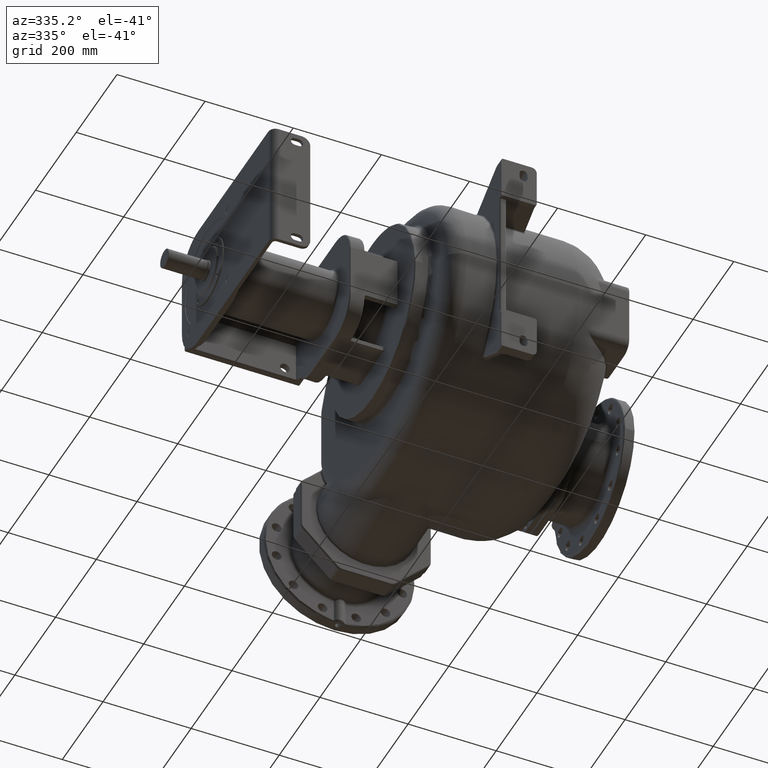
[diagram: clean part render]
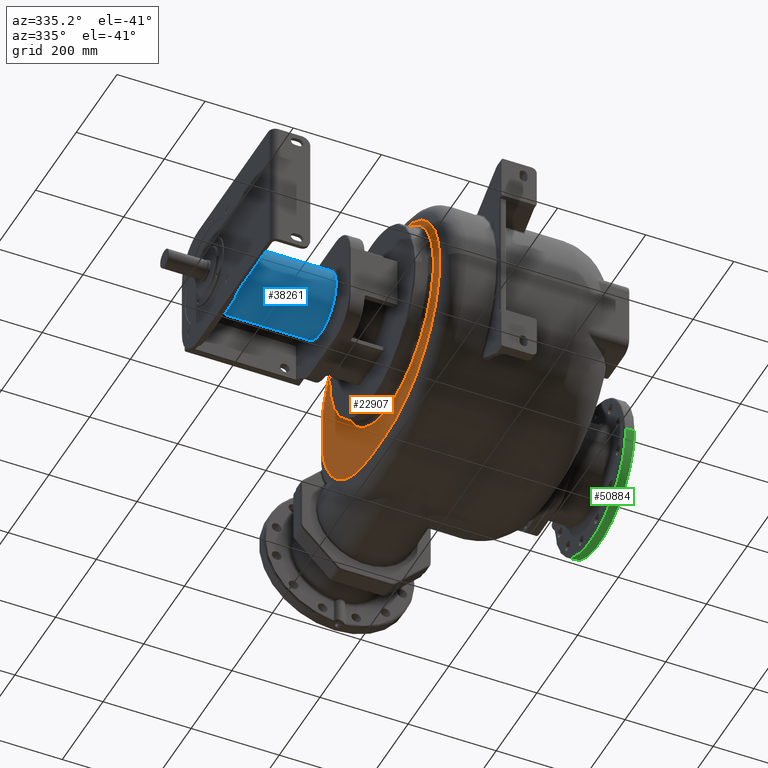
[diagram: same view with three faces highlighted in distinct colors, each labeled with its STEP entity id]
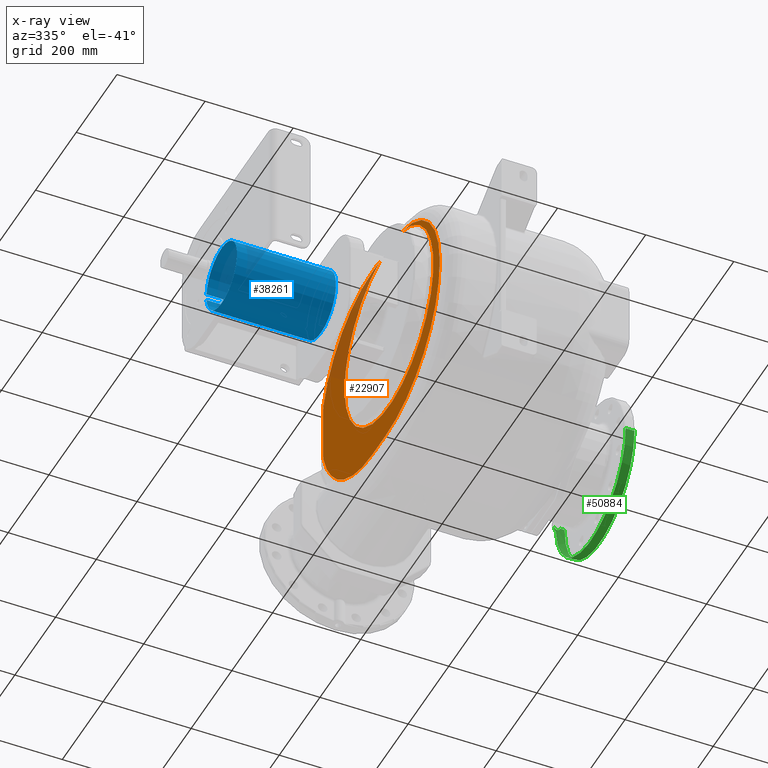
[diagram: x-ray of the same camera — body ghosted, the three highlighted faces saturated]
A machine part, auxiliary view with three faces highlighted in distinct colors.
The next image is the same camera in x-ray (body ghosted, the three faces saturated) — at least one of them is partly hidden behind the body in this view.
Their STEP definitions:

[orange] entity #22907 — the highlighted planar face has unit normal (-1, 0, 0).
#1528=CARTESIAN_POINT('',(-1.62E2,3.94E2,-3.6E1));
#1529=DIRECTION('',(-1.E0,0.E0,0.E0));
#1530=DIRECTION('',(0.E0,9.547738693467E-1,-2.973329083917E-1));
#1531=AXIS2_PLACEMENT_3D('',#1528,#1529,#1530);
#1533=CARTESIAN_POINT('',(-1.62E2,5.84E2,-9.516924876995E1));
#1534=DIRECTION('',(-1.E0,0.E0,0.E0));
#1535=DIRECTION('',(0.E0,1.E0,0.E0));
#1536=AXIS2_PLACEMENT_3D('',#1533,#1534,#1535);
#1538=DIRECTION('',(0.E0,0.E0,-1.E0));
#1539=VECTOR('',#1538,1.183384975399E2);
#1540=CARTESIAN_POINT('',(-1.62E2,6.34E2,2.316924876995E1));
#1541=LINE('',#1540,#1539);
#1542=CARTESIAN_POINT('',(-1.62E2,5.84E2,2.316924876995E1));
#1543=DIRECTION('',(-1.E0,0.E0,0.E0));
#1544=DIRECTION('',(0.E0,9.547738693467E-1,2.973329083917E-1));
#1545=AXIS2_PLACEMENT_3D('',#1542,#1543,#1544);
#1547=CARTESIAN_POINT('',(-1.62E2,3.94E2,-3.6E1));
#1548=DIRECTION('',(-1.E0,0.E0,0.E0));
#1549=DIRECTION('',(0.E0,0.E0,1.E0));
#1550=AXIS2_PLACEMENT_3D('',#1547,#1548,#1549);
#1552=DIRECTION('',(1.790136419162E-8,1.E0,2.011860714411E-13));
#1553=VECTOR('',#1552,3.757802244626E1);
#1554=CARTESIAN_POINT('',(-1.620000006727E2,3.564219775537E2,2.13E2));
#1555=LINE('',#1554,#1553);
#1556=CARTESIAN_POINT('',(-1.62E2,2.92E2,-1.8E1));
#1557=DIRECTION('',(-1.E0,0.E0,0.E0));
#1558=DIRECTION('',(0.E0,-1.E0,0.E0));
#1559=AXIS2_PLACEMENT_3D('',#1556,#1557,#1558);
#1561=CARTESIAN_POINT('',(-1.62E2,3.28E2,-1.8E1));
#1562=DIRECTION('',(-1.E0,0.E0,0.E0));
#1563=DIRECTION('',(0.E0,0.E0,-1.E0));
#1564=AXIS2_PLACEMENT_3D('',#1561,#1562,#1563);
#1566=DIRECTION('',(0.E0,-1.E0,0.E0));
#1567=VECTOR('',#1566,6.6E1);
#1568=CARTESIAN_POINT('',(-1.62E2,3.94E2,-2.85E2));
#1569=LINE('',#1568,#1567);
#1570=CARTESIAN_POINT('',(-1.62E2,3.94E2,-3.6E1));
#1571=DIRECTION('',(-1.E0,0.E0,0.E0));
#1572=DIRECTION('',(0.E0,6.951388519948E-1,-7.188754943990E-1));
#1573=AXIS2_PLACEMENT_3D('',#1570,#1571,#1572);
#2168=CARTESIAN_POINT('',(-1.62E2,5.670895725054E2,-2.149999996754E2));
#2180=CARTESIAN_POINT('',(-1.620000002137E2,2.458049913749E2,2.083338668808E2));
#2208=CARTESIAN_POINT('',(-1.62E2,3.1E2,0.E0));
#2209=DIRECTION('',(1.E0,0.E0,0.E0));
#2210=DIRECTION('',(0.E0,-2.944728288848E-1,9.556598521695E-1));
#2211=AXIS2_PLACEMENT_3D('',#2208,#2209,#2210);
#20302=CARTESIAN_POINT('',(-1.62E2,6.317386934673E2,3.803589418953E1));
#20303=CARTESIAN_POINT('',(-1.62E2,6.34E2,2.316924876995E1));
#20304=VERTEX_POINT('',#20302);
#20305=VERTEX_POINT('',#20303);
#20308=CARTESIAN_POINT('',(-1.62E2,6.34E2,-9.516924876995E1));
#20309=VERTEX_POINT('',#20308);
#20310=CARTESIAN_POINT('',(-1.62E2,6.317386934673E2,-1.100358941895E2));
#20311=VERTEX_POINT('',#20310);
#20312=CARTESIAN_POINT('',(-1.62E2,3.94E2,-2.85E2));
#20313=CARTESIAN_POINT('',(-1.62E2,3.28E2,-2.85E2));
#20314=VERTEX_POINT('',#20312);
#20315=VERTEX_POINT('',#20313);
#20318=CARTESIAN_POINT('',(-1.62E2,6.1E1,-1.8E1));
#20319=VERTEX_POINT('',#20318);
#20322=CARTESIAN_POINT('',(-1.62E2,3.94E2,2.13E2));
#20323=VERTEX_POINT('',#20322);
#20518=CARTESIAN_POINT('',(-1.620000006727E2,3.564219775537E2,2.13E2));
#20519=VERTEX_POINT('',#20518);
#20524=VERTEX_POINT('',#2168);
#20582=VERTEX_POINT('',#2180);
#22879=CARTESIAN_POINT('',(-1.62E2,3.1E2,0.E0));
#22880=DIRECTION('',(-1.E0,0.E0,0.E0));
#22881=DIRECTION('',(0.E0,0.E0,1.E0));
#22882=AXIS2_PLACEMENT_3D('',#22879,#22880,#22881);
#22883=PLANE('',#22882);
#22885=ORIENTED_EDGE('',*,*,#22884,.F.);
#22887=ORIENTED_EDGE('',*,*,#22886,.F.);
#22889=ORIENTED_EDGE('',*,*,#22888,.F.);
#22891=ORIENTED_EDGE('',*,*,#22890,.F.);
#22893=ORIENTED_EDGE('',*,*,#22892,.F.);
#22894=ORIENTED_EDGE('',*,*,#22865,.F.);
#22896=ORIENTED_EDGE('',*,*,#22895,.F.);
#22898=ORIENTED_EDGE('',*,*,#22897,.F.);
#22900=ORIENTED_EDGE('',*,*,#22899,.F.);
#22902=ORIENTED_EDGE('',*,*,#22901,.F.);
#22904=ORIENTED_EDGE('',*,*,#22903,.F.);
#22905=EDGE_LOOP('',(#22885,#22887,#22889,#22891,#22893,#22894,#22896,#22898,
#22900,#22902,#22904));
#22906=FACE_OUTER_BOUND('',#22905,.F.);
#22907=ADVANCED_FACE('',(#22906),#22883,.T.);
#1532=CIRCLE('',#1531,2.49E2);
#1537=CIRCLE('',#1536,5.E1);
#1546=CIRCLE('',#1545,5.E1);
#1551=CIRCLE('',#1550,2.49E2);
#1560=CIRCLE('',#1559,2.31E2);
#1565=CIRCLE('',#1564,2.67E2);
#1574=CIRCLE('',#1573,2.49E2);
#2212=CIRCLE('',#2211,2.18E2);
#22865=EDGE_CURVE('',#20519,#20323,#1555,.T.);
#22884=EDGE_CURVE('',#20311,#20524,#1532,.T.);
#22886=EDGE_CURVE('',#20309,#20311,#1537,.T.);
#22888=EDGE_CURVE('',#20305,#20309,#1541,.T.);
#22890=EDGE_CURVE('',#20304,#20305,#1546,.T.);
#22892=EDGE_CURVE('',#20323,#20304,#1551,.T.);
#22895=EDGE_CURVE('',#20582,#20519,#2212,.T.);
#22897=EDGE_CURVE('',#20319,#20582,#1560,.T.);
#22899=EDGE_CURVE('',#20315,#20319,#1565,.T.);
#22901=EDGE_CURVE('',#20314,#20315,#1569,.T.);
#22903=EDGE_CURVE('',#20524,#20314,#1574,.T.);

[blue] entity #38261 — the highlighted cylindrical surface (edge-blend (fillet) strip) has radius 75 mm, axis along (-1, 0, 0).
#15831=CARTESIAN_POINT('',(-3.17E2,3.846044797760E2,-7.692307692506E0));
#15833=CARTESIAN_POINT('',(-3.17E2,3.1E2,0.E0));
#15834=DIRECTION('',(-1.E0,0.E0,0.E0));
#15835=DIRECTION('',(0.E0,9.947263969882E-1,-1.025641025641E-1));
#15836=AXIS2_PLACEMENT_3D('',#15833,#15834,#15835);
#16549=CARTESIAN_POINT('',(-5.42E2,3.846044797762E2,7.692307692518E0));
#16551=CARTESIAN_POINT('',(-5.42E2,3.1E2,0.E0));
#16552=DIRECTION('',(1.E0,0.E0,0.E0));
#16553=DIRECTION('',(0.E0,9.947263969882E-1,1.025641025641E-1));
#16554=AXIS2_PLACEMENT_3D('',#16551,#16552,#16553);
#16706=DIRECTION('',(-1.E0,5.088117581585E-13,-5.243410643945E-14));
#16707=VECTOR('',#16706,2.25E2);
#16708=CARTESIAN_POINT('',(-3.17E2,3.846044797760E2,-7.692307692506E0));
#16709=LINE('',#16708,#16707);
#16710=DIRECTION('',(1.E0,-5.088117581585E-13,-5.246963357624E-14));
#16711=VECTOR('',#16710,2.25E2);
#16712=CARTESIAN_POINT('',(-5.42E2,3.846044797762E2,7.692307692518E0));
#16713=LINE('',#16712,#16711);
#21712=VERTEX_POINT('',#15831);
#21713=CARTESIAN_POINT('',(-5.42E2,3.846044797762E2,-7.692307692518E0));
#21714=VERTEX_POINT('',#21713);
#21727=VERTEX_POINT('',#16549);
#21728=CARTESIAN_POINT('',(-3.17E2,3.846044797760E2,7.692307692506E0));
#21729=VERTEX_POINT('',#21728);
#38249=CARTESIAN_POINT('',(-2.7175E2,3.1E2,0.E0));
#38250=DIRECTION('',(-1.E0,0.E0,0.E0));
#38251=DIRECTION('',(0.E0,-1.E0,0.E0));
#38252=AXIS2_PLACEMENT_3D('',#38249,#38250,#38251);
#38253=CYLINDRICAL_SURFACE('',#38252,7.5E1);
#38255=ORIENTED_EDGE('',*,*,#38254,.T.);
#38256=ORIENTED_EDGE('',*,*,#37955,.F.);
#38257=ORIENTED_EDGE('',*,*,#38241,.T.);
#38258=ORIENTED_EDGE('',*,*,#36955,.F.);
#38259=EDGE_LOOP('',(#38255,#38256,#38257,#38258));
#38260=FACE_OUTER_BOUND('',#38259,.F.);
#38261=ADVANCED_FACE('',(#38260),#38253,.T.);
#15837=CIRCLE('',#15836,7.5E1);
#16555=CIRCLE('',#16554,7.5E1);
#36955=EDGE_CURVE('',#21712,#21729,#15837,.T.);
#37955=EDGE_CURVE('',#21727,#21714,#16555,.T.);
#38241=EDGE_CURVE('',#21727,#21729,#16713,.T.);
#38254=EDGE_CURVE('',#21712,#21714,#16709,.T.);

[green] entity #50884 — the highlighted cylindrical surface (partial cylindrical patch) has radius 171.5 mm, axis along (1, 0, 0).
#48481=CARTESIAN_POINT('',(3.946E2,7.015E2,-3.600000000002E1));
#48529=CARTESIAN_POINT('',(4.064E2,7.015E2,-3.6E1));
#48577=DIRECTION('',(-1.E0,0.E0,0.E0));
#48578=VECTOR('',#48577,1.11E1);
#48579=CARTESIAN_POINT('',(4.175E2,7.015E2,-3.6E1));
#48580=LINE('',#48579,#48578);
#48679=CARTESIAN_POINT('',(3.935E2,7.013440547398E2,-4.331197000296E1));
#48681=DIRECTION('',(-1.E0,0.E0,2.230458242345E-11));
#48682=VECTOR('',#48681,1.1E0);
#48683=CARTESIAN_POINT('',(3.946E2,7.015E2,-3.600000000002E1));
#48684=LINE('',#48683,#48682);
#48685=CARTESIAN_POINT('',(4.005E2,7.013984830738E2,-4.19E1));
#48686=CARTESIAN_POINT('',(4.005702226354E2,7.013984830738E2,-4.19E1));
#48687=CARTESIAN_POINT('',(4.007105641558E2,7.013985693492E2,
-4.189749444728E1));
#48688=CARTESIAN_POINT('',(4.009208879221E2,7.013989569163E2,
-4.188622461156E1));
#48689=CARTESIAN_POINT('',(4.011306549644E2,7.013996006672E2,
-4.186745746535E1));
#48690=CARTESIAN_POINT('',(4.013396285659E2,7.014004973365E2,
-4.184121643532E1));
#48691=CARTESIAN_POINT('',(4.015475406779E2,7.014016424044E2,
-4.180753343295E1));
#48692=CARTESIAN_POINT('',(4.017541220177E2,7.014030300239E2,
-4.176645162485E1));
#48693=CARTESIAN_POINT('',(4.019591074273E2,7.014046531160E2,
-4.171802347068E1));
#48694=CARTESIAN_POINT('',(4.021622400034E2,7.014065034528E2,
-4.166230924751E1));
#48695=CARTESIAN_POINT('',(4.023632624720E2,7.014085716380E2,
-4.159937875729E1));
#48696=CARTESIAN_POINT('',(4.025619234444E2,7.014108472140E2,
-4.152930941331E1));
#48697=CARTESIAN_POINT('',(4.027579611567E2,7.014133185104E2,
-4.145219246462E1));
#48698=CARTESIAN_POINT('',(4.029511255603E2,7.014159729336E2,
-4.136812589647E1));
#48699=CARTESIAN_POINT('',(4.031411730083E2,7.014187970026E2,
-4.127721501744E1));
#48700=CARTESIAN_POINT('',(4.033278620818E2,7.014217763523E2,
-4.117957440190E1));
#48701=CARTESIAN_POINT('',(4.035109579924E2,7.014248958747E2,
-4.107532541289E1));
#48702=CARTESIAN_POINT('',(4.036902176361E2,7.014281395187E2,
-4.096460548630E1));
#48703=CARTESIAN_POINT('',(4.038654131687E2,7.014314907595E2,
-4.084755516393E1));
#48704=CARTESIAN_POINT('',(4.040363225011E2,7.014349325436E2,
-4.072432224619E1));
#48705=CARTESIAN_POINT('',(4.042027281494E2,7.014384473408E2,
-4.059506289987E1));
#48706=CARTESIAN_POINT('',(4.043644198342E2,7.014420172873E2,
-4.045993930319E1));
#48707=CARTESIAN_POINT('',(4.045211820289E2,7.014456239795E2,
-4.031913113848E1));
#48708=CARTESIAN_POINT('',(4.046728165656E2,7.014492490596E2,
-4.017281687220E1));
#48709=CARTESIAN_POINT('',(4.048191308401E2,7.014528740629E2,
-4.002118234925E1));
#48710=CARTESIAN_POINT('',(4.049599390048E2,7.014564805261E2,
-3.986442017827E1));
#48711=CARTESIAN_POINT('',(4.050950626028E2,7.014600500963E2,
-3.970272851769E1));
#48712=CARTESIAN_POINT('',(4.052243219442E2,7.014635643773E2,
-3.953632290385E1));
#48713=CARTESIAN_POINT('',(4.053475548585E2,7.014670055162E2,
-3.936541360802E1));
#48714=CARTESIAN_POINT('',(4.054646051779E2,7.014703559958E2,
-3.919021811507E1));
#48715=CARTESIAN_POINT('',(4.055753251009E2,7.014735987782E2,
-3.901095851754E1));
#48716=CARTESIAN_POINT('',(4.056795740942E2,7.014767173562E2,
-3.882786264475E1));
#48717=CARTESIAN_POINT('',(4.057772147174E2,7.014796956979E2,
-3.864117360714E1));
#48718=CARTESIAN_POINT('',(4.058681256092E2,7.014825187159E2,
-3.845112618903E1));
#48719=CARTESIAN_POINT('',(4.059521921948E2,7.014851720665E2,
-3.825796180798E1));
#48720=CARTESIAN_POINT('',(4.060293091672E2,7.014876422906E2,
-3.806192410448E1));
#48721=CARTESIAN_POINT('',(4.060993785380E2,7.014899168164E2,
-3.786326313186E1));
#48722=CARTESIAN_POINT('',(4.061623090611E2,7.014919839950E2,
-3.766224064010E1));
#48723=CARTESIAN_POINT('',(4.062180233173E2,7.014938333889E2,
-3.745910803051E1));
#48724=CARTESIAN_POINT('',(4.062664515049E2,7.014954556213E2,
-3.725412257265E1));
#48725=CARTESIAN_POINT('',(4.063075333451E2,7.014968424815E2,-3.704754117E1));
#48726=CARTESIAN_POINT('',(4.063412163773E2,7.014979869060E2,
-3.683962897645E1));
#48727=CARTESIAN_POINT('',(4.063674574321E2,7.014988830609E2,
-3.663065528583E1));
#48728=CARTESIAN_POINT('',(4.063862245971E2,7.014995264367E2,
-3.642088813731E1));
#48729=CARTESIAN_POINT('',(4.063974944446E2,7.014999137756E2,
-3.621056428363E1));
#48730=CARTESIAN_POINT('',(4.064E2,7.015E2,-3.607022263791E1));
#48731=CARTESIAN_POINT('',(4.064E2,7.015E2,-3.6E1));
#48733=CARTESIAN_POINT('',(3.946E2,7.015E2,-3.600000000002E1));
#48734=CARTESIAN_POINT('',(3.946E2,7.015E2,-3.607022263785E1));
#48735=CARTESIAN_POINT('',(3.946025055554E2,7.014999137756E2,
-3.621056428335E1));
#48736=CARTESIAN_POINT('',(3.946137754028E2,7.014995264367E2,
-3.642088813653E1));
#48737=CARTESIAN_POINT('',(3.946325425678E2,7.014988830609E2,
-3.663065528489E1));
#48738=CARTESIAN_POINT('',(3.946587836225E2,7.014979869060E2,
-3.683962897542E1));
#48739=CARTESIAN_POINT('',(3.946924666546E2,7.014968424815E2,
-3.704754116842E1));
#48740=CARTESIAN_POINT('',(3.947335484948E2,7.014954556213E2,
-3.725412257140E1));
#48741=CARTESIAN_POINT('',(3.947819766825E2,7.014938333889E2,
-3.745910802979E1));
#48742=CARTESIAN_POINT('',(3.948376909388E2,7.014919839950E2,
-3.766224063954E1));
#48743=CARTESIAN_POINT('',(3.949006214614E2,7.014899168165E2,
-3.786326312990E1));
#48744=CARTESIAN_POINT('',(3.949706908324E2,7.014876422907E2,
-3.806192410351E1));
#48745=CARTESIAN_POINT('',(3.950478078047E2,7.014851720665E2,
-3.825796180688E1));
#48746=CARTESIAN_POINT('',(3.951318743905E2,7.014825187159E2,
-3.845112618836E1));
#48747=CARTESIAN_POINT('',(3.952227852822E2,7.014796956979E2,
-3.864117360640E1));
#48748=CARTESIAN_POINT('',(3.953204259053E2,7.014767173562E2,
-3.882786264385E1));
#48749=CARTESIAN_POINT('',(3.954246748981E2,7.014735987782E2,
-3.901095851584E1));
#48750=CARTESIAN_POINT('',(3.955353948218E2,7.014703559959E2,
-3.919021811461E1));
#48751=CARTESIAN_POINT('',(3.956524451410E2,7.014670055162E2,
-3.936541360729E1));
#48752=CARTESIAN_POINT('',(3.957756780550E2,7.014635643774E2,
-3.953632290287E1));
#48753=CARTESIAN_POINT('',(3.959049373967E2,7.014600500963E2,
-3.970272851699E1));
#48754=CARTESIAN_POINT('',(3.960400609941E2,7.014564805261E2,
-3.986442017697E1));
#48755=CARTESIAN_POINT('',(3.961808691594E2,7.014528740629E2,
-4.002118234872E1));
#48756=CARTESIAN_POINT('',(3.963271834338E2,7.014492490596E2,
-4.017281687166E1));
#48757=CARTESIAN_POINT('',(3.964788179706E2,7.014456239795E2,
-4.031913113801E1));
#48758=CARTESIAN_POINT('',(3.966355801645E2,7.014420172873E2,
-4.045993930206E1));
#48759=CARTESIAN_POINT('',(3.967972718499E2,7.014384473408E2,
-4.059506289934E1));
#48760=CARTESIAN_POINT('',(3.969636774980E2,7.014349325436E2,
-4.072432224554E1));
#48761=CARTESIAN_POINT('',(3.971345868306E2,7.014314907596E2,
-4.084755516349E1));
#48762=CARTESIAN_POINT('',(3.973097823634E2,7.014281395187E2,
-4.096460548596E1));
#48763=CARTESIAN_POINT('',(3.974890420062E2,7.014248958747E2,
-4.107532541209E1));
#48764=CARTESIAN_POINT('',(3.976721379172E2,7.014217763523E2,
-4.117957440140E1));
#48765=CARTESIAN_POINT('',(3.978588269911E2,7.014187970026E2,
-4.127721501714E1));
#48766=CARTESIAN_POINT('',(3.980488744391E2,7.014159729336E2,
-4.136812589620E1));
#48767=CARTESIAN_POINT('',(3.982420388424E2,7.014133185104E2,
-4.145219246424E1));
#48768=CARTESIAN_POINT('',(3.984380765546E2,7.014108472140E2,
-4.152930941294E1));
#48769=CARTESIAN_POINT('',(3.986367375267E2,7.014085716380E2,
-4.159937875689E1));
#48770=CARTESIAN_POINT('',(3.988377599960E2,7.014065034528E2,
-4.166230924735E1));
#48771=CARTESIAN_POINT('',(3.990408925721E2,7.014046531160E2,
-4.171802347052E1));
#48772=CARTESIAN_POINT('',(3.992458779816E2,7.014030300239E2,
-4.176645162469E1));
#48773=CARTESIAN_POINT('',(3.994524593205E2,7.014016424044E2,
-4.180753343267E1));
#48774=CARTESIAN_POINT('',(3.996603714335E2,7.014004973365E2,
-4.184121643525E1));
#48775=CARTESIAN_POINT('',(3.998693450349E2,7.013996006672E2,
-4.186745746527E1));
#48776=CARTESIAN_POINT('',(4.000791120773E2,7.013989569163E2,
-4.188622461151E1));
#48777=CARTESIAN_POINT('',(4.002894358434E2,7.013985693492E2,
-4.189749444725E1));
#48778=CARTESIAN_POINT('',(4.004297773643E2,7.013984830738E2,-4.19E1));
#48779=CARTESIAN_POINT('',(4.005E2,7.013984830738E2,-4.19E1));
#48781=CARTESIAN_POINT('',(3.935E2,5.3E2,-3.6E1));
#48782=DIRECTION('',(1.E0,0.E0,0.E0));
#48783=DIRECTION('',(0.E0,9.990906981913E-1,-4.263539360324E-2));
#48784=AXIS2_PLACEMENT_3D('',#48781,#48782,#48783);
#48786=CARTESIAN_POINT('',(3.935E2,7.013440547398E2,-4.331197000296E1));
#48787=CARTESIAN_POINT('',(3.935703191857E2,7.013410431118E2,
-4.338254257064E1));
#48788=CARTESIAN_POINT('',(3.937128694884E2,7.013350285288E2,
-4.352143849246E1));
#48789=CARTESIAN_POINT('',(3.939325065774E2,7.013260522768E2,
-4.372314344263E1));
#48790=CARTESIAN_POINT('',(3.941576582694E2,7.013171567526E2,
-4.391795548775E1));
#48791=CARTESIAN_POINT('',(3.943112246933E2,7.013113032424E2,
-4.404308142060E1));
#48792=CARTESIAN_POINT('',(3.943888888889E2,7.013083988109E2,
-4.410447387915E1));
#48794=CARTESIAN_POINT('',(3.943888888889E2,7.013083988109E2,
-4.410447387915E1));
#48795=CARTESIAN_POINT('',(3.944569097839E2,7.013058549979E2,
-4.415824361660E1));
#48796=CARTESIAN_POINT('',(3.945912644318E2,7.013006104769E2,
-4.426802837342E1));
#48797=CARTESIAN_POINT('',(3.947878437999E2,7.012922469961E2,
-4.443956955430E1));
#48798=CARTESIAN_POINT('',(3.949790733972E2,7.012833811653E2,
-4.461767497602E1));
#48799=CARTESIAN_POINT('',(3.951647512610E2,7.012740007946E2,
-4.480218264172E1));
#48800=CARTESIAN_POINT('',(3.953446794977E2,7.012640935238E2,
-4.499293178735E1));
#48801=CARTESIAN_POINT('',(3.955186432082E2,7.012536487195E2,
-4.518973002833E1));
#48802=CARTESIAN_POINT('',(3.956864434569E2,7.012426558036E2,
-4.539238807487E1));
#48803=CARTESIAN_POINT('',(3.958478853257E2,7.012311049527E2,
-4.560070797684E1));
#48804=CARTESIAN_POINT('',(3.960027788984E2,7.012189872040E2,
-4.581448342589E1));
#48805=CARTESIAN_POINT('',(3.961509401907E2,7.012062945152E2,
-4.603350072714E1));
#48806=CARTESIAN_POINT('',(3.962921915512E2,7.011930198697E2,
-4.625753891804E1));
#48807=CARTESIAN_POINT('',(3.964263620437E2,7.011791574084E2,
-4.648636946226E1));
#48808=CARTESIAN_POINT('',(3.965532875885E2,7.011647025139E2,
-4.671975675931E1));
#48809=CARTESIAN_POINT('',(3.966728114106E2,7.011496519124E2,
-4.695745828369E1));
#48810=CARTESIAN_POINT('',(3.967847842334E2,7.011340037705E2,
-4.719922480868E1));
#48811=CARTESIAN_POINT('',(3.968890649478E2,7.011177577930E2,
-4.744480054814E1));
#48812=CARTESIAN_POINT('',(3.969855208686E2,7.011009153098E2,
-4.769392344873E1));
#48813=CARTESIAN_POINT('',(3.970740279347E2,7.010834793489E2,
-4.794632559475E1));
#48814=CARTESIAN_POINT('',(3.971544710767E2,7.010654547126E2,
-4.820173350676E1));
#48815=CARTESIAN_POINT('',(3.972267443760E2,7.010468480702E2,
-4.845986813979E1));
#48816=CARTESIAN_POINT('',(3.972907520208E2,7.010276679426E2,
-4.872044628763E1));
#48817=CARTESIAN_POINT('',(3.973464076552E2,7.010079249181E2,
-4.898317873243E1));
#48818=CARTESIAN_POINT('',(3.973936354571E2,7.009876315135E2,
-4.924777317835E1));
#48819=CARTESIAN_POINT('',(3.974323701574E2,7.009668021235E2,
-4.951393560670E1));
#48820=CARTESIAN_POINT('',(3.974625556282E2,7.009454539524E2,
-4.978135913482E1));
#48821=CARTESIAN_POINT('',(3.974841498305E2,7.009236059158E2,
-5.004973974400E1));
#48822=CARTESIAN_POINT('',(3.974971179531E2,7.009012772429E2,
-5.031879037658E1));
#48823=CARTESIAN_POINT('',(3.974999999620E2,7.008860980457E2,
-5.049826241935E1));
#48824=CARTESIAN_POINT('',(3.975E2,7.008784325483E2,-5.058805298248E1));
#48826=CARTESIAN_POINT('',(3.975E2,5.3E2,-3.6E1));
#48827=DIRECTION('',(-1.E0,0.E0,0.E0));
#48828=DIRECTION('',(0.E0,9.963756999904E-1,-8.506153342552E-2));
#48829=AXIS2_PLACEMENT_3D('',#48826,#48827,#48828);
#48831=DIRECTION('',(-1.E0,0.E0,0.E0));
#48832=VECTOR('',#48831,2.E1);
#48833=CARTESIAN_POINT('',(4.175E2,3.585E2,-3.6E1));
#48834=LINE('',#48833,#48832);
#48835=CARTESIAN_POINT('',(4.175E2,5.3E2,-3.6E1));
#48836=DIRECTION('',(1.E0,0.E0,0.E0));
#48837=DIRECTION('',(0.E0,-1.E0,0.E0));
#48838=AXIS2_PLACEMENT_3D('',#48835,#48836,#48837);
#50467=VERTEX_POINT('',#48679);
#50470=VERTEX_POINT('',#48794);
#50471=VERTEX_POINT('',#48824);
#50472=CARTESIAN_POINT('',(3.975E2,3.585E2,-3.6E1));
#50473=VERTEX_POINT('',#50472);
#50474=CARTESIAN_POINT('',(3.935E2,7.015E2,-3.6E1));
#50475=VERTEX_POINT('',#50474);
#50508=CARTESIAN_POINT('',(4.175E2,7.015E2,-3.6E1));
#50509=CARTESIAN_POINT('',(4.175E2,3.585E2,-3.6E1));
#50510=VERTEX_POINT('',#50508);
#50511=VERTEX_POINT('',#50509);
#50680=VERTEX_POINT('',#48481);
#50682=VERTEX_POINT('',#48529);
#50683=VERTEX_POINT('',#48685);
#50863=CARTESIAN_POINT('',(4.205E2,5.3E2,-3.6E1));
#50864=DIRECTION('',(1.E0,0.E0,0.E0));
#50865=DIRECTION('',(0.E0,1.E0,0.E0));
#50866=AXIS2_PLACEMENT_3D('',#50863,#50864,#50865);
#50867=CYLINDRICAL_SURFACE('',#50866,1.715E2);
#50869=ORIENTED_EDGE('',*,*,#50868,.F.);
#50870=ORIENTED_EDGE('',*,*,#50852,.F.);
#50871=ORIENTED_EDGE('',*,*,#50841,.T.);
#50872=ORIENTED_EDGE('',*,*,#50839,.F.);
#50874=ORIENTED_EDGE('',*,*,#50873,.T.);
#50876=ORIENTED_EDGE('',*,*,#50875,.T.);
#50877=ORIENTED_EDGE('',*,*,#50809,.T.);
#50878=ORIENTED_EDGE('',*,*,#50832,.F.);
#50880=ORIENTED_EDGE('',*,*,#50879,.T.);
#50881=ORIENTED_EDGE('',*,*,#50828,.T.);
#50882=EDGE_LOOP('',(#50869,#50870,#50871,#50872,#50874,#50876,#50877,#50878,
#50880,#50881));
#50883=FACE_OUTER_BOUND('',#50882,.F.);
#50884=ADVANCED_FACE('',(#50883),#50867,.T.);
#48732=B_SPLINE_CURVE_WITH_KNOTS('',3,(#48685,#48686,#48687,#48688,#48689,
#48690,#48691,#48692,#48693,#48694,#48695,#48696,#48697,#48698,#48699,#48700,
#48701,#48702,#48703,#48704,#48705,#48706,#48707,#48708,#48709,#48710,#48711,
#48712,#48713,#48714,#48715,#48716,#48717,#48718,#48719,#48720,#48721,#48722,
#48723,#48724,#48725,#48726,#48727,#48728,#48729,#48730,#48731),.UNSPECIFIED.,
.F.,.F.,(4,1,1,1,1,1,1,1,1,1,1,1,1,1,1,1,1,1,1,1,1,1,1,1,1,1,1,1,1,1,1,1,1,1,1,
1,1,1,1,1,1,1,1,1,4),(0.E0,2.272727272727E-2,4.545454545455E-2,
6.818181818182E-2,9.090909090909E-2,1.136363636364E-1,1.363636363636E-1,
1.590909090909E-1,1.818181818182E-1,2.045454545455E-1,2.272727272727E-1,2.5E-1,
2.727272727273E-1,2.954545454545E-1,3.181818181818E-1,3.409090909091E-1,
3.636363636364E-1,3.863636363636E-1,4.090909090909E-1,4.318181818182E-1,
4.545454545455E-1,4.772727272727E-1,5.E-1,5.227272727273E-1,5.454545454545E-1,
5.681818181818E-1,5.909090909091E-1,6.136363636364E-1,6.363636363636E-1,
6.590909090909E-1,6.818181818182E-1,7.045454545455E-1,7.272727272727E-1,7.5E-1,
7.727272727273E-1,7.954545454545E-1,8.181818181818E-1,8.409090909091E-1,
8.636363636364E-1,8.863636363636E-1,9.090909090909E-1,9.318181818182E-1,
9.545454545455E-1,9.772727272727E-1,1.E0),.UNSPECIFIED.);
#48780=B_SPLINE_CURVE_WITH_KNOTS('',3,(#48733,#48734,#48735,#48736,#48737,
#48738,#48739,#48740,#48741,#48742,#48743,#48744,#48745,#48746,#48747,#48748,
#48749,#48750,#48751,#48752,#48753,#48754,#48755,#48756,#48757,#48758,#48759,
#48760,#48761,#48762,#48763,#48764,#48765,#48766,#48767,#48768,#48769,#48770,
#48771,#48772,#48773,#48774,#48775,#48776,#48777,#48778,#48779),.UNSPECIFIED.,
.F.,.F.,(4,1,1,1,1,1,1,1,1,1,1,1,1,1,1,1,1,1,1,1,1,1,1,1,1,1,1,1,1,1,1,1,1,1,1,
1,1,1,1,1,1,1,1,1,4),(0.E0,2.272727272727E-2,4.545454545455E-2,
6.818181818182E-2,9.090909090909E-2,1.136363636364E-1,1.363636363636E-1,
1.590909090909E-1,1.818181818182E-1,2.045454545455E-1,2.272727272727E-1,2.5E-1,
2.727272727273E-1,2.954545454545E-1,3.181818181818E-1,3.409090909091E-1,
3.636363636364E-1,3.863636363636E-1,4.090909090909E-1,4.318181818182E-1,
4.545454545455E-1,4.772727272727E-1,5.E-1,5.227272727273E-1,5.454545454545E-1,
5.681818181818E-1,5.909090909091E-1,6.136363636364E-1,6.363636363636E-1,
6.590909090909E-1,6.818181818182E-1,7.045454545455E-1,7.272727272727E-1,7.5E-1,
7.727272727273E-1,7.954545454545E-1,8.181818181818E-1,8.409090909091E-1,
8.636363636364E-1,8.863636363636E-1,9.090909090909E-1,9.318181818182E-1,
9.545454545455E-1,9.772727272727E-1,1.E0),.UNSPECIFIED.);
#48785=CIRCLE('',#48784,1.715E2);
#48793=B_SPLINE_CURVE_WITH_KNOTS('',3,(#48786,#48787,#48788,#48789,#48790,
#48791,#48792),.UNSPECIFIED.,.F.,.F.,(4,1,1,1,4),(0.E0,2.5E-1,5.E-1,7.5E-1,
1.E0),.UNSPECIFIED.);
#48825=B_SPLINE_CURVE_WITH_KNOTS('',3,(#48794,#48795,#48796,#48797,#48798,
#48799,#48800,#48801,#48802,#48803,#48804,#48805,#48806,#48807,#48808,#48809,
#48810,#48811,#48812,#48813,#48814,#48815,#48816,#48817,#48818,#48819,#48820,
#48821,#48822,#48823,#48824),.UNSPECIFIED.,.F.,.F.,(4,1,1,1,1,1,1,1,1,1,1,1,1,1,
1,1,1,1,1,1,1,1,1,1,1,1,1,1,4),(0.E0,3.571428571429E-2,7.142857142857E-2,
1.071428571429E-1,1.428571428571E-1,1.785714285714E-1,2.142857142857E-1,2.5E-1,
2.857142857143E-1,3.214285714286E-1,3.571428571429E-1,3.928571428571E-1,
4.285714285714E-1,4.642857142857E-1,5.E-1,5.357142857143E-1,5.714285714286E-1,
6.071428571429E-1,6.428571428571E-1,6.785714285714E-1,7.142857142857E-1,7.5E-1,
7.857142857143E-1,8.214285714286E-1,8.571428571429E-1,8.928571428571E-1,
9.285714285714E-1,9.642857142857E-1,1.E0),.UNSPECIFIED.);
#48830=CIRCLE('',#48829,1.715E2);
#48839=CIRCLE('',#48838,1.715E2);
#50809=EDGE_CURVE('',#50471,#50473,#48830,.T.);
#50828=EDGE_CURVE('',#50510,#50682,#48580,.T.);
#50832=EDGE_CURVE('',#50511,#50473,#48834,.T.);
#50839=EDGE_CURVE('',#50467,#50475,#48785,.T.);
#50841=EDGE_CURVE('',#50680,#50475,#48684,.T.);
#50852=EDGE_CURVE('',#50680,#50683,#48780,.T.);
#50868=EDGE_CURVE('',#50683,#50682,#48732,.T.);
#50873=EDGE_CURVE('',#50467,#50470,#48793,.T.);
#50875=EDGE_CURVE('',#50470,#50471,#48825,.T.);
#50879=EDGE_CURVE('',#50511,#50510,#48839,.T.);